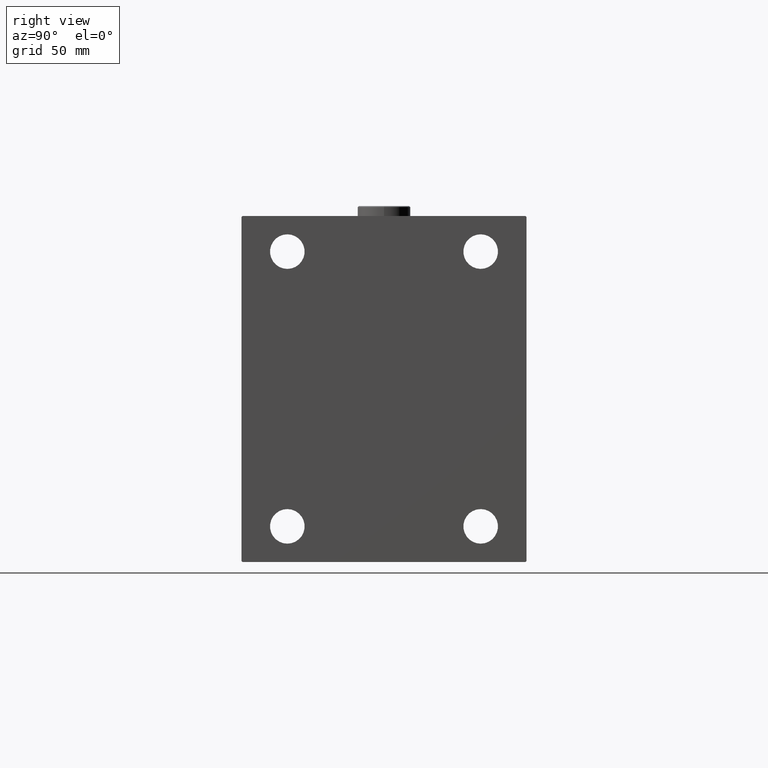
[diagram: clean part render]
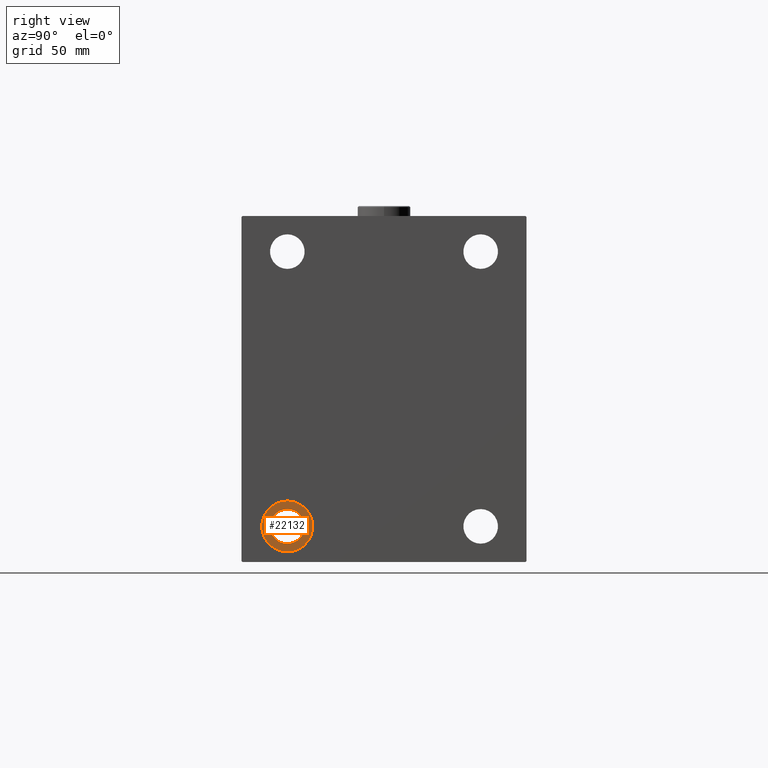
[diagram: same view with one face highlighted and labeled with its STEP entity id]
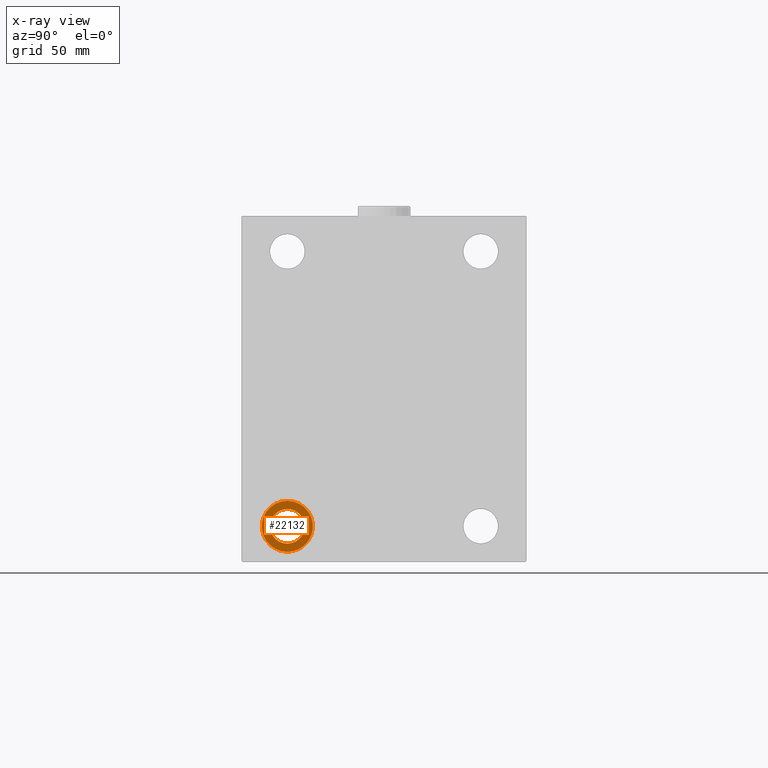
[diagram: x-ray of the same camera — body ghosted, the highlighted face saturated]
A machine part, right view. The second image highlights one B-rep face of the part: STEP entity #22132.
The next image is the same camera in x-ray: the body ghosted, the highlighted face saturated — about 0% of this face is hidden behind the body in this view.
In plain terms, the highlighted planar face has unit normal (1, 0, 0).
Its self-contained STEP definition (entity closure, byte-faithful):
#282 = CARTESIAN_POINT ( 'NONE',  ( 128.0000000000000000, -47.49999999999999289, -76.00000000000000000 ) ) ;
#1768 = EDGE_CURVE ( 'NONE', #3984, #15177, #23729, .T. ) ;
#3984 = VERTEX_POINT ( 'NONE', #282 ) ;
#4985 = DIRECTION ( 'NONE',  ( -1.000000000000000000, -0.000000000000000000, -0.000000000000000000 ) ) ;
#5219 = DIRECTION ( 'NONE',  ( 0.000000000000000000, 0.000000000000000000, 1.000000000000000000 ) ) ;
#5973 = EDGE_CURVE ( 'NONE', #46915, #27563, #31574, .T. ) ;
#7054 = DIRECTION ( 'NONE',  ( 0.000000000000000000, 0.000000000000000000, 1.000000000000000000 ) ) ;
#7432 = PLANE ( 'NONE',  #39639 ) ;
#9366 = CARTESIAN_POINT ( 'NONE',  ( 128.0000000000000000, -47.49999999999999289, -59.00000000000001421 ) ) ;
#10124 = EDGE_CURVE ( 'NONE', #27563, #46915, #35607, .T. ) ;
#10600 = CARTESIAN_POINT ( 'NONE',  ( 128.0000000000000000, 0.000000000000000000, 0.000000000000000000 ) ) ;
#11386 = CARTESIAN_POINT ( 'NONE',  ( 128.0000000000000000, -47.49999999999999289, -55.00000000000000711 ) ) ;
#12736 = CARTESIAN_POINT ( 'NONE',  ( 128.0000000000000000, -47.49999999999999289, -67.50000000000000000 ) ) ;
#14245 = FACE_OUTER_BOUND ( 'NONE', #23230, .T. ) ;
#15177 = VERTEX_POINT ( 'NONE', #9366 ) ;
#15493 = EDGE_CURVE ( 'NONE', #15177, #3984, #36445, .T. ) ;
#20897 = DIRECTION ( 'NONE',  ( 0.000000000000000000, 0.000000000000000000, -1.000000000000000000 ) ) ;
#20973 = ORIENTED_EDGE ( 'NONE', *, *, #5973, .F. ) ;
#21684 = AXIS2_PLACEMENT_3D ( 'NONE', #12736, #4985, #5219 ) ;
#22132 = ADVANCED_FACE ( 'NONE', ( #14245, #36804 ), #7432, .T. ) ;
#23230 = EDGE_LOOP ( 'NONE', ( #20973, #36186 ) ) ;
#23729 = CIRCLE ( 'NONE', #27553, 8.499999999999992895 ) ;
#23813 = DIRECTION ( 'NONE',  ( -1.000000000000000000, -0.000000000000000000, -0.000000000000000000 ) ) ;
#24053 = CARTESIAN_POINT ( 'NONE',  ( 128.0000000000000000, -47.49999999999999289, -67.50000000000000000 ) ) ;
#25486 = DIRECTION ( 'NONE',  ( -1.000000000000000000, -0.000000000000000000, -0.000000000000000000 ) ) ;
#27108 = AXIS2_PLACEMENT_3D ( 'NONE', #24053, #23813, #20897 ) ;
#27553 = AXIS2_PLACEMENT_3D ( 'NONE', #42861, #35561, #39449 ) ;
#27563 = VERTEX_POINT ( 'NONE', #11386 ) ;
#27718 = AXIS2_PLACEMENT_3D ( 'NONE', #29370, #25486, #7054 ) ;
#29370 = CARTESIAN_POINT ( 'NONE',  ( 128.0000000000000000, -47.49999999999999289, -67.50000000000000000 ) ) ;
#31574 = CIRCLE ( 'NONE', #27718, 12.49999999999999645 ) ;
#32907 = DIRECTION ( 'NONE',  ( 1.000000000000000000, 0.000000000000000000, -0.000000000000000000 ) ) ;
#35561 = DIRECTION ( 'NONE',  ( -1.000000000000000000, -0.000000000000000000, -0.000000000000000000 ) ) ;
#35607 = CIRCLE ( 'NONE', #21684, 12.49999999999999645 ) ;
#36186 = ORIENTED_EDGE ( 'NONE', *, *, #10124, .F. ) ;
#36445 = CIRCLE ( 'NONE', #27108, 8.499999999999992895 ) ;
#36804 = FACE_BOUND ( 'NONE', #44064, .T. ) ;
#37391 = ORIENTED_EDGE ( 'NONE', *, *, #15493, .T. ) ;
#39449 = DIRECTION ( 'NONE',  ( 0.000000000000000000, 0.000000000000000000, -1.000000000000000000 ) ) ;
#39639 = AXIS2_PLACEMENT_3D ( 'NONE', #10600, #32907, #40692 ) ;
#40692 = DIRECTION ( 'NONE',  ( 0.000000000000000000, 0.000000000000000000, 1.000000000000000000 ) ) ;
#40754 = ORIENTED_EDGE ( 'NONE', *, *, #1768, .T. ) ;
#42861 = CARTESIAN_POINT ( 'NONE',  ( 128.0000000000000000, -47.49999999999999289, -67.50000000000000000 ) ) ;
#44064 = EDGE_LOOP ( 'NONE', ( #37391, #40754 ) ) ;
#45960 = CARTESIAN_POINT ( 'NONE',  ( 128.0000000000000000, -47.49999999999999289, -80.00000000000000000 ) ) ;
#46915 = VERTEX_POINT ( 'NONE', #45960 ) ;